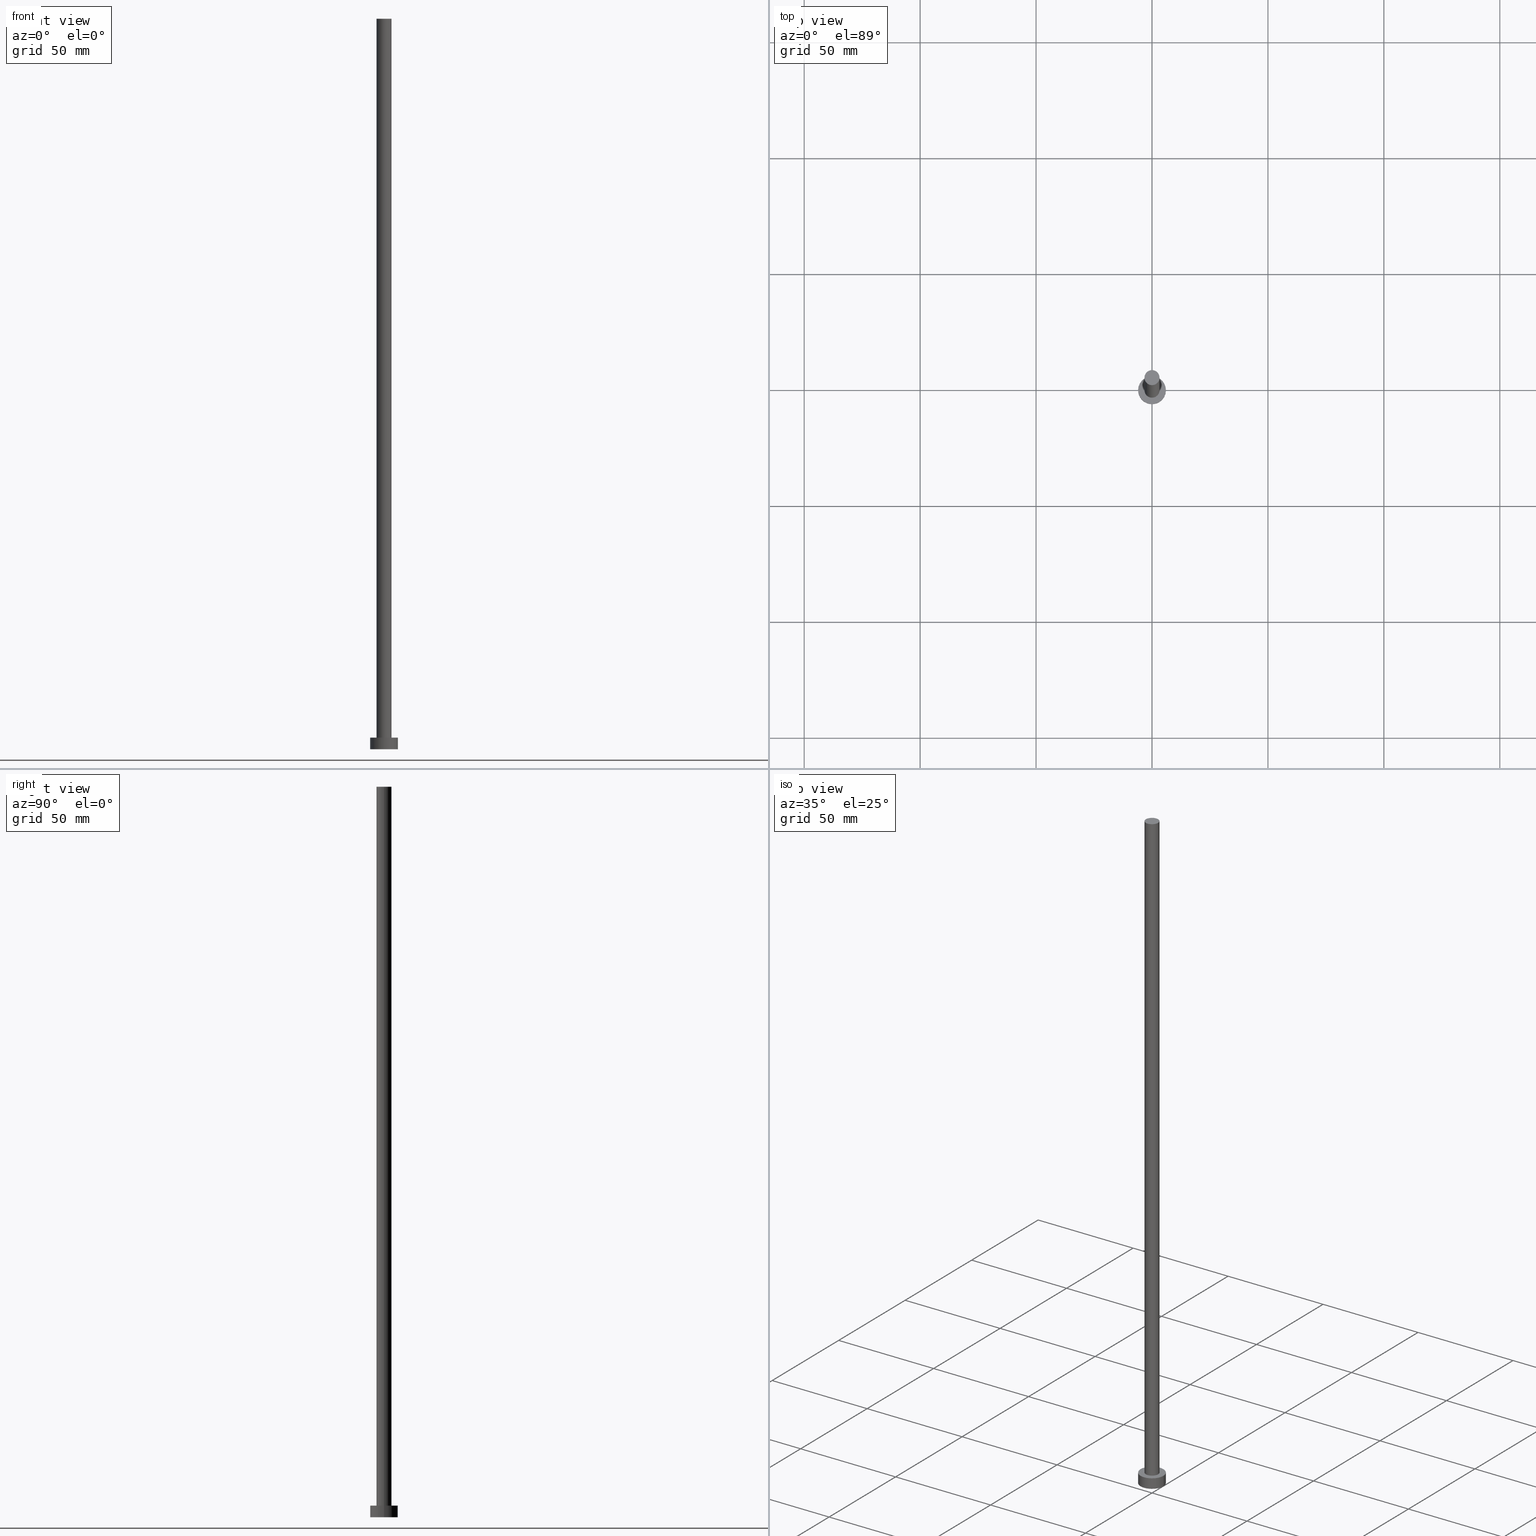
[diagram: canonical four-view strip — front | top / right | iso, engineering-drawing reading convention]
A machine part, canonical four-view strip (front | top / right | iso — engineering-drawing reading convention). The complete STEP part file that produces these views, byte-faithful:
ISO-10303-21;
HEADER;
FILE_DESCRIPTION (( 'STEP AP203' ),
    '1' );
FILE_NAME ('c914.STEP',
    '2023-02-12T12:07:40',
    ( '' ),
    ( '' ),
    'SwSTEP 2.0',
    'SolidWorks 2019',
    '' );
FILE_SCHEMA (( 'CONFIG_CONTROL_DESIGN' ));
ENDSEC;

DATA;
#1 =( NAMED_UNIT ( * ) SI_UNIT ( $, .STERADIAN. ) SOLID_ANGLE_UNIT ( ) );
#2 =( GEOMETRIC_REPRESENTATION_CONTEXT ( 3 ) GLOBAL_UNCERTAINTY_ASSIGNED_CONTEXT ( ( #105 ) ) GLOBAL_UNIT_ASSIGNED_CONTEXT ( ( #201, #175, #1 ) ) REPRESENTATION_CONTEXT ( 'NONE', 'WORKASPACE' ) );
#3 = PERSON_AND_ORGANIZATION_ROLE ( 'classification_officer' ) ;
#4 = CC_DESIGN_DATE_AND_TIME_ASSIGNMENT ( #217, #51, ( #14 ) ) ;
#5 = LINE ( 'NONE', #237, #193 ) ;
#6 = AXIS2_PLACEMENT_3D ( 'NONE', #108, #192, #172 ) ;
#7 = CARTESIAN_POINT ( 'NONE',  ( 3.250000000000000444, 3.980102097228898231E-16, 315.0000000000000000 ) ) ;
#8 = AXIS2_PLACEMENT_3D ( 'NONE', #240, #10, #59 ) ;
#9 = CYLINDRICAL_SURFACE ( 'NONE', #214, 6.000000000000000888 ) ;
#10 = DIRECTION ( 'NONE',  ( 0.000000000000000000, 0.000000000000000000, 1.000000000000000000 ) ) ;
#11 = LOCAL_TIME ( 13, 7, 40.00000000000000000, #130 ) ;
#12 = CARTESIAN_POINT ( 'NONE',  ( 0.000000000000000000, 0.000000000000000000, 5.000000000000000000 ) ) ;
#13 = ORIENTED_EDGE ( 'NONE', *, *, #125, .F. ) ;
#14 = PRODUCT_DEFINITION ( 'NEZN�M�', '', #247, #70 ) ;
#15 = PRODUCT_DEFINITION_SHAPE ( 'NONE', 'NONE',  #14 ) ;
#16 = CIRCLE ( 'NONE', #24, 6.000000000000000888 ) ;
#17 = APPROVAL_ROLE ( '' ) ;
#18 = DIRECTION ( 'NONE',  ( 0.000000000000000000, 0.000000000000000000, 1.000000000000000000 ) ) ;
#19 = DATE_AND_TIME ( #197, #219 ) ;
#20 = CC_DESIGN_PERSON_AND_ORGANIZATION_ASSIGNMENT ( #65, #196, ( #247 ) ) ;
#21 = CYLINDRICAL_SURFACE ( 'NONE', #174, 3.250000000000000444 ) ;
#22 = EDGE_CURVE ( 'NONE', #123, #122, #46, .T. ) ;
#23 = APPLICATION_CONTEXT ( 'configuration controlled 3d designs of mechanical parts and assemblies' ) ;
#24 = AXIS2_PLACEMENT_3D ( 'NONE', #61, #223, #25 ) ;
#25 = DIRECTION ( 'NONE',  ( 1.000000000000000000, 0.000000000000000000, 0.000000000000000000 ) ) ;
#26 = ORIENTED_EDGE ( 'NONE', *, *, #117, .F. ) ;
#27 = AXIS2_PLACEMENT_3D ( 'NONE', #243, #113, #203 ) ;
#28 = DIRECTION ( 'NONE',  ( -0.000000000000000000, -0.000000000000000000, -1.000000000000000000 ) ) ;
#29 = ORIENTED_EDGE ( 'NONE', *, *, #92, .T. ) ;
#30 = ORIENTED_EDGE ( 'NONE', *, *, #90, .F. ) ;
#31 = EDGE_LOOP ( 'NONE', ( #29, #187 ) ) ;
#32 = ORIENTED_EDGE ( 'NONE', *, *, #142, .T. ) ;
#33 = APPROVAL_STATUS ( 'not_yet_approved' ) ;
#34 = APPROVAL_STATUS ( 'not_yet_approved' ) ;
#35 = COORDINATED_UNIVERSAL_TIME_OFFSET ( 1, 0, .AHEAD. ) ;
#36 = SHAPE_DEFINITION_REPRESENTATION ( #15, #128 ) ;
#37 = DATE_AND_TIME ( #150, #11 ) ;
#38 = DIRECTION ( 'NONE',  ( 0.000000000000000000, 0.000000000000000000, 1.000000000000000000 ) ) ;
#39 = PERSON ( 'NEUR�EN�', 'NEUR�EN�', 'NEUR�EN�', ('NEUR�EN�'), ('NEUR�EN�'), ('NEUR�EN�') ) ;
#40 = DIRECTION ( 'NONE',  ( -1.000000000000000000, 0.000000000000000000, 0.000000000000000000 ) ) ;
#41 = APPLICATION_CONTEXT ( 'configuration controlled 3d designs of mechanical parts and assemblies' ) ;
#42 = CLOSED_SHELL ( 'NONE', ( #163, #202, #152, #106, #232, #185, #80 ) ) ;
#43 = DIRECTION ( 'NONE',  ( 0.000000000000000000, 0.000000000000000000, 1.000000000000000000 ) ) ;
#44 = ORIENTED_EDGE ( 'NONE', *, *, #125, .T. ) ;
#45 = DIRECTION ( 'NONE',  ( 1.000000000000000000, 0.000000000000000000, 0.000000000000000000 ) ) ;
#46 = LINE ( 'NONE', #102, #100 ) ;
#47 = VERTEX_POINT ( 'NONE', #88 ) ;
#48 = ORIENTED_EDGE ( 'NONE', *, *, #90, .T. ) ;
#49 = CC_DESIGN_PERSON_AND_ORGANIZATION_ASSIGNMENT ( #133, #3, ( #140 ) ) ;
#50 = PERSON_AND_ORGANIZATION_ROLE ( 'design_owner' ) ;
#51 = DATE_TIME_ROLE ( 'creation_date' ) ;
#52 = DATE_AND_TIME ( #147, #207 ) ;
#53 = AXIS2_PLACEMENT_3D ( 'NONE', #60, #200, #40 ) ;
#54 = EDGE_CURVE ( 'NONE', #101, #145, #141, .T. ) ;
#55 = APPROVAL_STATUS ( 'not_yet_approved' ) ;
#56 = APPROVAL_ROLE ( '' ) ;
#57 = DIRECTION ( 'NONE',  ( -0.000000000000000000, -0.000000000000000000, -1.000000000000000000 ) ) ;
#58 = AXIS2_PLACEMENT_3D ( 'NONE', #111, #18, #155 ) ;
#59 = DIRECTION ( 'NONE',  ( 1.000000000000000000, 0.000000000000000000, 0.000000000000000000 ) ) ;
#60 = CARTESIAN_POINT ( 'NONE',  ( 0.000000000000000000, 0.000000000000000000, 315.0000000000000000 ) ) ;
#61 = CARTESIAN_POINT ( 'NONE',  ( 0.000000000000000000, 0.000000000000000000, 0.000000000000000000 ) ) ;
#62 = PERSON_AND_ORGANIZATION_ROLE ( 'creator' ) ;
#63 = ORGANIZATION ( 'NEUR�EN�', 'NEUR�EN�', '' ) ;
#64 = PLANE ( 'NONE',  #179 ) ;
#65 = PERSON_AND_ORGANIZATION ( #39, #63 ) ;
#66 = APPROVAL ( #34, 'NEUR�EN�' ) ;
#67 = PLANE ( 'NONE',  #144 ) ;
#68 = ORIENTED_EDGE ( 'NONE', *, *, #244, .T. ) ;
#69 = CC_DESIGN_PERSON_AND_ORGANIZATION_ASSIGNMENT ( #234, #50, ( #170 ) ) ;
#70 = DESIGN_CONTEXT ( 'detailed design', #23, 'design' ) ;
#71 = EDGE_LOOP ( 'NONE', ( #168, #190, #68, #186 ) ) ;
#72 = EDGE_LOOP ( 'NONE', ( #164, #184, #44, #166 ) ) ;
#73 = AXIS2_PLACEMENT_3D ( 'NONE', #248, #134, #83 ) ;
#74 = CARTESIAN_POINT ( 'NONE',  ( 0.000000000000000000, 0.000000000000000000, 5.000000000000000000 ) ) ;
#75 = CC_DESIGN_APPROVAL ( #224, ( #14 ) ) ;
#76 = PERSON_AND_ORGANIZATION_ROLE ( 'creator' ) ;
#77 = CARTESIAN_POINT ( 'NONE',  ( 0.000000000000000000, 0.000000000000000000, 315.0000000000000000 ) ) ;
#78 = SECURITY_CLASSIFICATION_LEVEL ( 'unclassified' ) ;
#79 = APPLICATION_PROTOCOL_DEFINITION ( 'international standard', 'config_control_design', 1994, #41 ) ;
#80 = ADVANCED_FACE ( 'NONE', ( #250 ), #67, .T. ) ;
#81 = CYLINDRICAL_SURFACE ( 'NONE', #171, 6.000000000000000888 ) ;
#82 = PERSON_AND_ORGANIZATION ( #39, #63 ) ;
#83 = DIRECTION ( 'NONE',  ( 1.000000000000000000, 0.000000000000000000, 0.000000000000000000 ) ) ;
#84 = LINE ( 'NONE', #208, #138 ) ;
#85 = EDGE_CURVE ( 'NONE', #47, #252, #84, .T. ) ;
#86 = DIRECTION ( 'NONE',  ( 0.000000000000000000, 0.000000000000000000, 1.000000000000000000 ) ) ;
#87 = EDGE_LOOP ( 'NONE', ( #231, #211, #32, #191 ) ) ;
#88 = CARTESIAN_POINT ( 'NONE',  ( -3.250000000000000444, 0.000000000000000000, 315.0000000000000000 ) ) ;
#89 = VECTOR ( 'NONE', #189, 1000.000000000000000 ) ;
#90 = EDGE_CURVE ( 'NONE', #252, #122, #162, .T. ) ;
#91 = CC_DESIGN_APPROVAL ( #96, ( #140 ) ) ;
#92 = EDGE_CURVE ( 'NONE', #169, #101, #241, .T. ) ;
#93 = DATE_AND_TIME ( #195, #233 ) ;
#94 = DIRECTION ( 'NONE',  ( -1.000000000000000000, 0.000000000000000000, 0.000000000000000000 ) ) ;
#95 = LOCAL_TIME ( 13, 7, 40.00000000000000000, #110 ) ;
#96 = APPROVAL ( #55, 'NEUR�EN�' ) ;
#97 = FACE_OUTER_BOUND ( 'NONE', #71, .T. ) ;
#98 = AXIS2_PLACEMENT_3D ( 'NONE', #245, #137, #221 ) ;
#99 = CARTESIAN_POINT ( 'NONE',  ( 6.000000000000000888, 7.347880794884120722E-16, 5.000000000000000000 ) ) ;
#100 = VECTOR ( 'NONE', #228, 1000.000000000000000 ) ;
#101 = VERTEX_POINT ( 'NONE', #99 ) ;
#102 = CARTESIAN_POINT ( 'NONE',  ( 3.250000000000000444, 3.980102097228898231E-16, 315.0000000000000000 ) ) ;
#103 = CARTESIAN_POINT ( 'NONE',  ( 6.000000000000000888, 7.347880794884120722E-16, 5.000000000000000000 ) ) ;
#104 = CIRCLE ( 'NONE', #27, 6.000000000000000888 ) ;
#105 = UNCERTAINTY_MEASURE_WITH_UNIT (LENGTH_MEASURE( 1.000000000000000082E-05 ), #201, 'distance_accuracy_value', 'NONE');
#106 = ADVANCED_FACE ( 'NONE', ( #176, #246 ), #64, .T. ) ;
#107 = EDGE_CURVE ( 'NONE', #47, #123, #119, .T. ) ;
#108 = CARTESIAN_POINT ( 'NONE',  ( 0.000000000000000000, 0.000000000000000000, 0.000000000000000000 ) ) ;
#109 = COORDINATED_UNIVERSAL_TIME_OFFSET ( 1, 0, .AHEAD. ) ;
#110 = COORDINATED_UNIVERSAL_TIME_OFFSET ( 1, 0, .AHEAD. ) ;
#111 = CARTESIAN_POINT ( 'NONE',  ( 0.000000000000000000, 0.000000000000000000, 0.000000000000000000 ) ) ;
#112 = COORDINATED_UNIVERSAL_TIME_OFFSET ( 1, 0, .AHEAD. ) ;
#113 = DIRECTION ( 'NONE',  ( 0.000000000000000000, 0.000000000000000000, 1.000000000000000000 ) ) ;
#114 = CC_DESIGN_APPROVAL ( #66, ( #247 ) ) ;
#115 = CARTESIAN_POINT ( 'NONE',  ( -6.000000000000000888, 0.000000000000000000, 5.000000000000000000 ) ) ;
#116 = FACE_OUTER_BOUND ( 'NONE', #72, .T. ) ;
#117 = EDGE_CURVE ( 'NONE', #227, #145, #148, .T. ) ;
#118 = DIRECTION ( 'NONE',  ( 1.000000000000000000, 0.000000000000000000, -0.000000000000000000 ) ) ;
#119 = CIRCLE ( 'NONE', #8, 3.250000000000000444 ) ;
#120 = CC_DESIGN_SECURITY_CLASSIFICATION ( #140, ( #247 ) ) ;
#121 = ORIENTED_EDGE ( 'NONE', *, *, #85, .T. ) ;
#122 = VERTEX_POINT ( 'NONE', #204 ) ;
#123 = VERTEX_POINT ( 'NONE', #7 ) ;
#124 = EDGE_CURVE ( 'NONE', #123, #47, #188, .T. ) ;
#125 = EDGE_CURVE ( 'NONE', #145, #227, #16, .T. ) ;
#126 = APPLICATION_PROTOCOL_DEFINITION ( 'international standard', 'config_control_design', 1994, #23 ) ;
#127 = PERSON_AND_ORGANIZATION ( #39, #63 ) ;
#128 = ADVANCED_BREP_SHAPE_REPRESENTATION ( 'c914', ( #198, #6 ), #2 ) ;
#129 = FACE_OUTER_BOUND ( 'NONE', #209, .T. ) ;
#130 = COORDINATED_UNIVERSAL_TIME_OFFSET ( 1, 0, .AHEAD. ) ;
#131 = DIRECTION ( 'NONE',  ( 0.000000000000000000, 0.000000000000000000, 1.000000000000000000 ) ) ;
#132 = DIRECTION ( 'NONE',  ( -0.000000000000000000, -0.000000000000000000, -1.000000000000000000 ) ) ;
#133 = PERSON_AND_ORGANIZATION ( #39, #63 ) ;
#134 = DIRECTION ( 'NONE',  ( 0.000000000000000000, 0.000000000000000000, 1.000000000000000000 ) ) ;
#135 = DIRECTION ( 'NONE',  ( -1.000000000000000000, 0.000000000000000000, 0.000000000000000000 ) ) ;
#136 = AXIS2_PLACEMENT_3D ( 'NONE', #177, #160, #242 ) ;
#137 = DIRECTION ( 'NONE',  ( 0.000000000000000000, 0.000000000000000000, 1.000000000000000000 ) ) ;
#138 = VECTOR ( 'NONE', #28, 1000.000000000000000 ) ;
#139 = ORIENTED_EDGE ( 'NONE', *, *, #22, .F. ) ;
#140 = SECURITY_CLASSIFICATION ( '', '', #78 ) ;
#141 = LINE ( 'NONE', #103, #89 ) ;
#142 = EDGE_CURVE ( 'NONE', #169, #227, #5, .T. ) ;
#143 = EDGE_LOOP ( 'NONE', ( #139, #251, #121, #48 ) ) ;
#144 = AXIS2_PLACEMENT_3D ( 'NONE', #206, #43, #118 ) ;
#145 = VERTEX_POINT ( 'NONE', #239 ) ;
#146 = PERSON_AND_ORGANIZATION ( #39, #63 ) ;
#147 = CALENDAR_DATE ( 2023, 12, 2 ) ;
#148 = CIRCLE ( 'NONE', #98, 6.000000000000000888 ) ;
#149 = DIRECTION ( 'NONE',  ( -0.000000000000000000, -0.000000000000000000, -1.000000000000000000 ) ) ;
#150 = CALENDAR_DATE ( 2023, 12, 2 ) ;
#151 = CARTESIAN_POINT ( 'NONE',  ( -3.250000000000000444, 0.000000000000000000, 5.000000000000000000 ) ) ;
#152 = ADVANCED_FACE ( 'NONE', ( #178 ), #9, .T. ) ;
#153 = FACE_OUTER_BOUND ( 'NONE', #143, .T. ) ;
#154 = DATE_TIME_ROLE ( 'classification_date' ) ;
#155 = DIRECTION ( 'NONE',  ( 1.000000000000000000, 0.000000000000000000, -0.000000000000000000 ) ) ;
#156 = DIRECTION ( 'NONE',  ( -0.000000000000000000, -0.000000000000000000, -1.000000000000000000 ) ) ;
#157 = DIRECTION ( 'NONE',  ( 1.000000000000000000, 0.000000000000000000, -0.000000000000000000 ) ) ;
#158 = CYLINDRICAL_SURFACE ( 'NONE', #53, 3.250000000000000444 ) ;
#159 = CC_DESIGN_PERSON_AND_ORGANIZATION_ASSIGNMENT ( #82, #62, ( #247 ) ) ;
#160 = DIRECTION ( 'NONE',  ( 0.000000000000000000, 0.000000000000000000, 1.000000000000000000 ) ) ;
#161 = CARTESIAN_POINT ( 'NONE',  ( 0.000000000000000000, 0.000000000000000000, 5.000000000000000000 ) ) ;
#162 = CIRCLE ( 'NONE', #253, 3.250000000000000444 ) ;
#163 = ADVANCED_FACE ( 'NONE', ( #97 ), #21, .T. ) ;
#164 = ORIENTED_EDGE ( 'NONE', *, *, #181, .F. ) ;
#165 = ORIENTED_EDGE ( 'NONE', *, *, #107, .T. ) ;
#166 = ORIENTED_EDGE ( 'NONE', *, *, #142, .F. ) ;
#167 = AXIS2_PLACEMENT_3D ( 'NONE', #74, #131, #220 ) ;
#168 = ORIENTED_EDGE ( 'NONE', *, *, #124, .F. ) ;
#169 = VERTEX_POINT ( 'NONE', #115 ) ;
#170 = PRODUCT ( 'c914', 'c914', '', ( #254 ) ) ;
#171 = AXIS2_PLACEMENT_3D ( 'NONE', #161, #149, #94 ) ;
#172 = DIRECTION ( 'NONE',  ( 1.000000000000000000, 0.000000000000000000, 0.000000000000000000 ) ) ;
#173 = PRODUCT_RELATED_PRODUCT_CATEGORY ( 'detail', '', ( #170 ) ) ;
#174 = AXIS2_PLACEMENT_3D ( 'NONE', #77, #132, #218 ) ;
#175 =( NAMED_UNIT ( * ) PLANE_ANGLE_UNIT ( ) SI_UNIT ( $, .RADIAN. ) );
#176 = FACE_BOUND ( 'NONE', #183, .T. ) ;
#177 = CARTESIAN_POINT ( 'NONE',  ( 0.000000000000000000, 0.000000000000000000, 315.0000000000000000 ) ) ;
#178 = FACE_OUTER_BOUND ( 'NONE', #87, .T. ) ;
#179 = AXIS2_PLACEMENT_3D ( 'NONE', #226, #38, #157 ) ;
#180 = APPROVAL_DATE_TIME ( #93, #66 ) ;
#181 = EDGE_CURVE ( 'NONE', #101, #169, #104, .T. ) ;
#182 = APPROVAL_PERSON_ORGANIZATION ( #235, #96, #17 ) ;
#183 = EDGE_LOOP ( 'NONE', ( #30, #249 ) ) ;
#184 = ORIENTED_EDGE ( 'NONE', *, *, #54, .T. ) ;
#185 = ADVANCED_FACE ( 'NONE', ( #153 ), #158, .T. ) ;
#186 = ORIENTED_EDGE ( 'NONE', *, *, #85, .F. ) ;
#187 = ORIENTED_EDGE ( 'NONE', *, *, #181, .T. ) ;
#188 = CIRCLE ( 'NONE', #136, 3.250000000000000444 ) ;
#189 = DIRECTION ( 'NONE',  ( -0.000000000000000000, -0.000000000000000000, -1.000000000000000000 ) ) ;
#190 = ORIENTED_EDGE ( 'NONE', *, *, #22, .T. ) ;
#191 = ORIENTED_EDGE ( 'NONE', *, *, #117, .T. ) ;
#192 = DIRECTION ( 'NONE',  ( 0.000000000000000000, 0.000000000000000000, 1.000000000000000000 ) ) ;
#193 = VECTOR ( 'NONE', #156, 1000.000000000000000 ) ;
#194 = APPROVAL_ROLE ( '' ) ;
#195 = CALENDAR_DATE ( 2023, 12, 2 ) ;
#196 = PERSON_AND_ORGANIZATION_ROLE ( 'design_supplier' ) ;
#197 = CALENDAR_DATE ( 2023, 12, 2 ) ;
#198 = MANIFOLD_SOLID_BREP ( 'P�idat vysunut�m3', #42 ) ;
#199 = APPROVAL_PERSON_ORGANIZATION ( #127, #66, #194 ) ;
#200 = DIRECTION ( 'NONE',  ( -0.000000000000000000, -0.000000000000000000, -1.000000000000000000 ) ) ;
#201 =( LENGTH_UNIT ( ) NAMED_UNIT ( * ) SI_UNIT ( .MILLI., .METRE. ) );
#202 = ADVANCED_FACE ( 'NONE', ( #116 ), #81, .T. ) ;
#203 = DIRECTION ( 'NONE',  ( 1.000000000000000000, 0.000000000000000000, 0.000000000000000000 ) ) ;
#204 = CARTESIAN_POINT ( 'NONE',  ( 3.250000000000000444, 3.980102097228898231E-16, 5.000000000000000000 ) ) ;
#205 = CARTESIAN_POINT ( 'NONE',  ( -6.000000000000000888, 0.000000000000000000, 0.000000000000000000 ) ) ;
#206 = CARTESIAN_POINT ( 'NONE',  ( 0.000000000000000000, 0.000000000000000000, 315.0000000000000000 ) ) ;
#207 = LOCAL_TIME ( 13, 7, 40.00000000000000000, #109 ) ;
#208 = CARTESIAN_POINT ( 'NONE',  ( -3.250000000000000444, 0.000000000000000000, 315.0000000000000000 ) ) ;
#209 = EDGE_LOOP ( 'NONE', ( #26, #13 ) ) ;
#210 = APPROVAL_PERSON_ORGANIZATION ( #213, #224, #56 ) ;
#211 = ORIENTED_EDGE ( 'NONE', *, *, #92, .F. ) ;
#212 = CC_DESIGN_DATE_AND_TIME_ASSIGNMENT ( #37, #154, ( #140 ) ) ;
#213 = PERSON_AND_ORGANIZATION ( #39, #63 ) ;
#214 = AXIS2_PLACEMENT_3D ( 'NONE', #222, #57, #135 ) ;
#215 = APPROVAL_DATE_TIME ( #52, #224 ) ;
#216 = PLANE ( 'NONE',  #58 ) ;
#217 = DATE_AND_TIME ( #236, #95 ) ;
#218 = DIRECTION ( 'NONE',  ( -1.000000000000000000, 0.000000000000000000, 0.000000000000000000 ) ) ;
#219 = LOCAL_TIME ( 13, 7, 40.00000000000000000, #112 ) ;
#220 = DIRECTION ( 'NONE',  ( 1.000000000000000000, 0.000000000000000000, 0.000000000000000000 ) ) ;
#221 = DIRECTION ( 'NONE',  ( 1.000000000000000000, 0.000000000000000000, 0.000000000000000000 ) ) ;
#222 = CARTESIAN_POINT ( 'NONE',  ( 0.000000000000000000, 0.000000000000000000, 5.000000000000000000 ) ) ;
#223 = DIRECTION ( 'NONE',  ( 0.000000000000000000, 0.000000000000000000, 1.000000000000000000 ) ) ;
#224 = APPROVAL ( #33, 'NEUR�EN�' ) ;
#225 = CIRCLE ( 'NONE', #167, 3.250000000000000444 ) ;
#226 = CARTESIAN_POINT ( 'NONE',  ( 0.000000000000000000, 0.000000000000000000, 5.000000000000000000 ) ) ;
#227 = VERTEX_POINT ( 'NONE', #205 ) ;
#228 = DIRECTION ( 'NONE',  ( -0.000000000000000000, -0.000000000000000000, -1.000000000000000000 ) ) ;
#229 = EDGE_LOOP ( 'NONE', ( #165, #230 ) ) ;
#230 = ORIENTED_EDGE ( 'NONE', *, *, #124, .T. ) ;
#231 = ORIENTED_EDGE ( 'NONE', *, *, #54, .F. ) ;
#232 = ADVANCED_FACE ( 'NONE', ( #129 ), #216, .F. ) ;
#233 = LOCAL_TIME ( 13, 7, 40.00000000000000000, #35 ) ;
#234 = PERSON_AND_ORGANIZATION ( #39, #63 ) ;
#235 = PERSON_AND_ORGANIZATION ( #39, #63 ) ;
#236 = CALENDAR_DATE ( 2023, 12, 2 ) ;
#237 = CARTESIAN_POINT ( 'NONE',  ( -6.000000000000000888, 0.000000000000000000, 5.000000000000000000 ) ) ;
#238 = APPROVAL_DATE_TIME ( #19, #96 ) ;
#239 = CARTESIAN_POINT ( 'NONE',  ( 6.000000000000000888, 7.347880794884120722E-16, 0.000000000000000000 ) ) ;
#240 = CARTESIAN_POINT ( 'NONE',  ( 0.000000000000000000, 0.000000000000000000, 315.0000000000000000 ) ) ;
#241 = CIRCLE ( 'NONE', #73, 6.000000000000000888 ) ;
#242 = DIRECTION ( 'NONE',  ( 1.000000000000000000, 0.000000000000000000, 0.000000000000000000 ) ) ;
#243 = CARTESIAN_POINT ( 'NONE',  ( 0.000000000000000000, 0.000000000000000000, 5.000000000000000000 ) ) ;
#244 = EDGE_CURVE ( 'NONE', #122, #252, #225, .T. ) ;
#245 = CARTESIAN_POINT ( 'NONE',  ( 0.000000000000000000, 0.000000000000000000, 0.000000000000000000 ) ) ;
#246 = FACE_OUTER_BOUND ( 'NONE', #31, .T. ) ;
#247 = PRODUCT_DEFINITION_FORMATION_WITH_SPECIFIED_SOURCE ( 'LIBOVOLN�', '', #170, .NOT_KNOWN. ) ;
#248 = CARTESIAN_POINT ( 'NONE',  ( 0.000000000000000000, 0.000000000000000000, 5.000000000000000000 ) ) ;
#249 = ORIENTED_EDGE ( 'NONE', *, *, #244, .F. ) ;
#250 = FACE_OUTER_BOUND ( 'NONE', #229, .T. ) ;
#251 = ORIENTED_EDGE ( 'NONE', *, *, #107, .F. ) ;
#252 = VERTEX_POINT ( 'NONE', #151 ) ;
#253 = AXIS2_PLACEMENT_3D ( 'NONE', #12, #86, #45 ) ;
#254 = MECHANICAL_CONTEXT ( 'NONE', #41, 'mechanical' ) ;
#255 = CC_DESIGN_PERSON_AND_ORGANIZATION_ASSIGNMENT ( #146, #76, ( #14 ) ) ;
ENDSEC;
END-ISO-10303-21;
